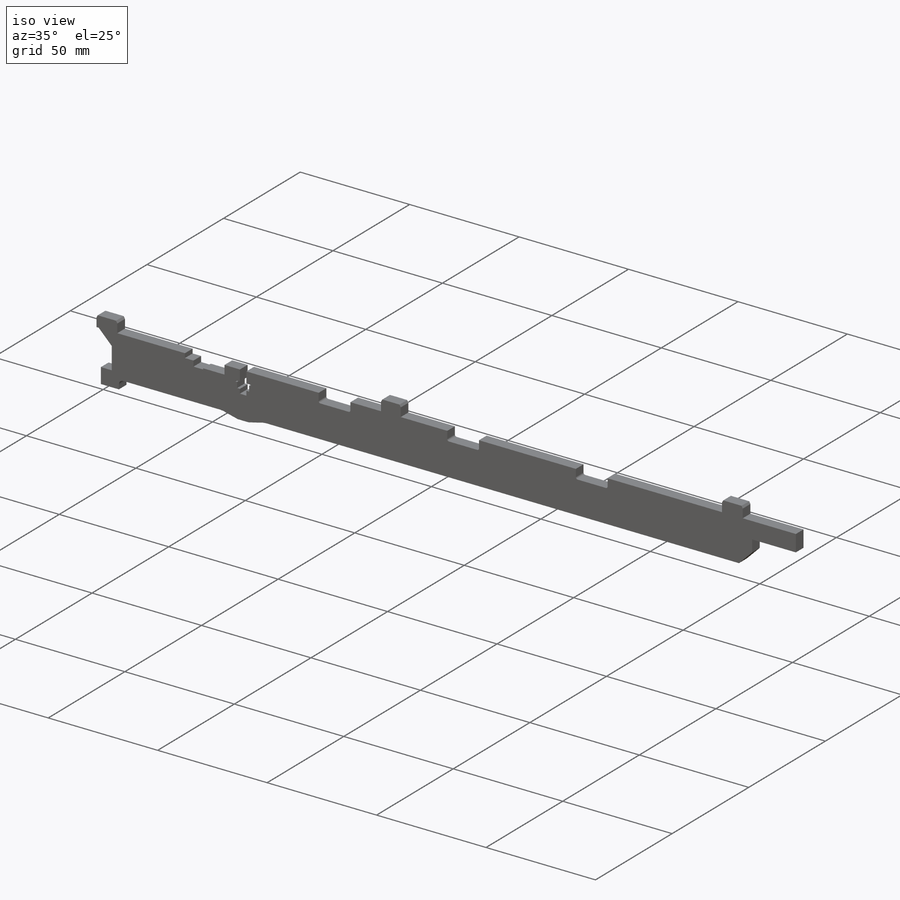
[diagram: iso view]
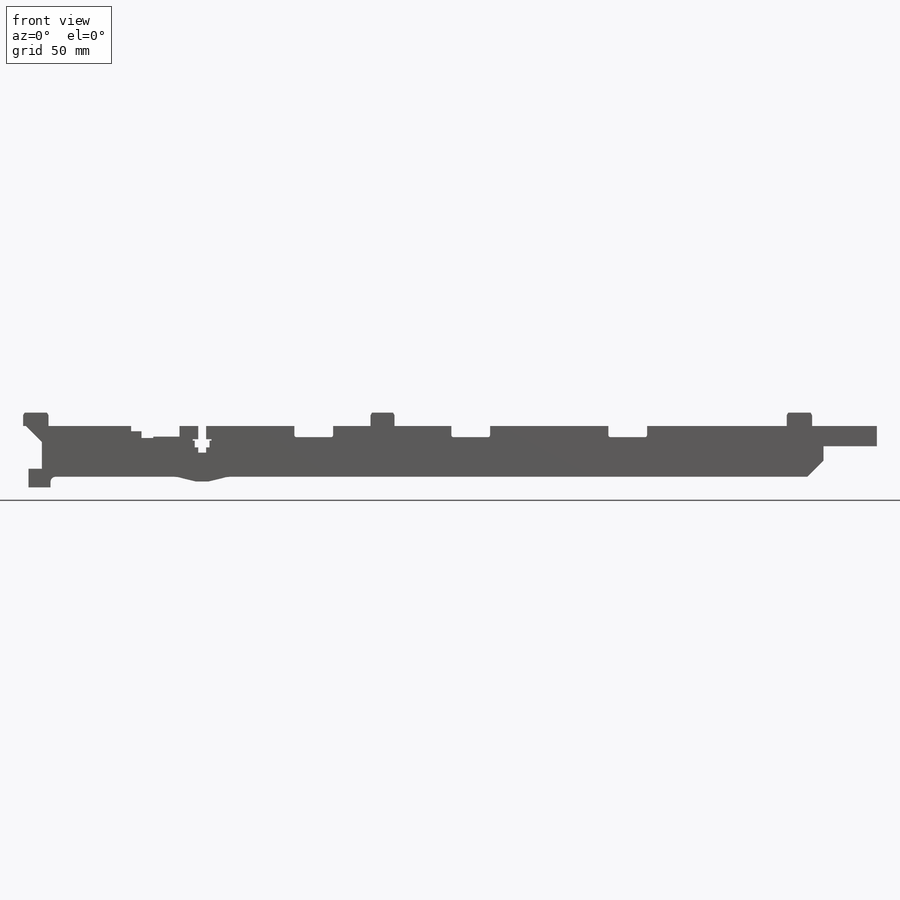
[diagram: front view]
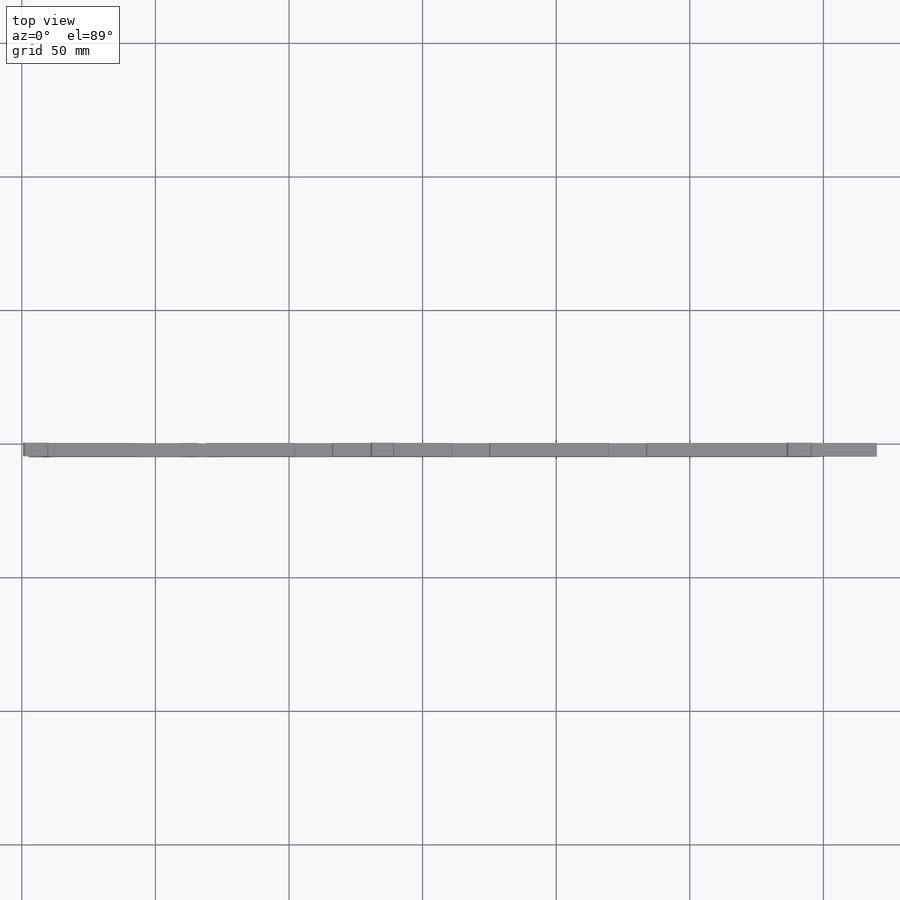
[diagram: top view]
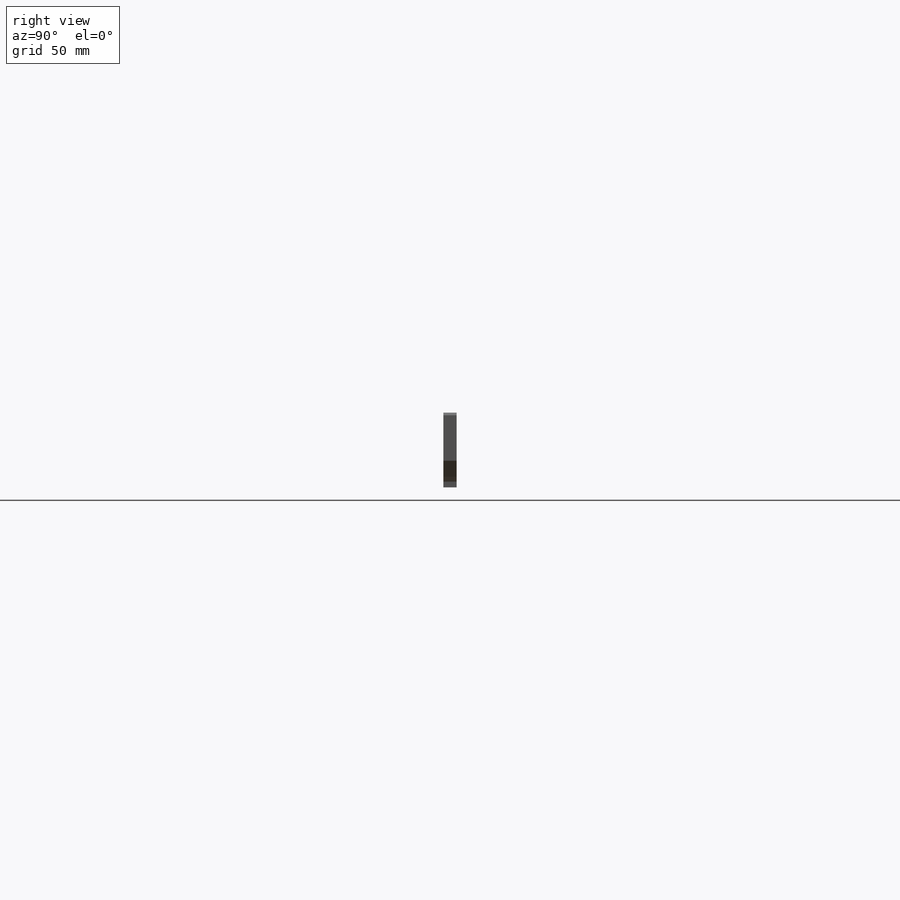
[diagram: right view]
SOLIDWORKS PART (.sldprt)
format: sldprt  version: not decoded by parser v0  size: 407,552 bytes
history: native  units: mm
features: chamfer x4, sketch x3, cut_extrude x2, material x1, extrude x1, fillet x1 (+13 scaffold rows collapsed)
feature tree (25):
  scaffold x13  (default folders/planes/origin — collapsed)
  material  "6061-T6 Black anodised"
  sketch  "Sketch1"  dims[c1.D21=0.2mm c1.D24=0.5mm c1.D26=1.5mm c1.D34=8.0mm c1.D35=2.0mm c1.D39=10.0mm c1.D40=12.0mm c1.D1=298.0mm c1.D2=20.0mm c1.D3=7.6mm c1.D4=5.0mm c1.D5=11.4mm c1.D6=8.0mm c1.D7=9.5mm c1.D8=6.0mm c1.D9=7.0mm c2.D6=180.0mm c2.D10=53.12mm c2.D11=27.37mm c2.D12=3.3mm c3.D10=56.12mm c3.D13=20.0mm c3.D14=~0.701924mm c4.D14=135.0deg c4.D15=50.0mm c4.D16=0.3mm c4.D17=36.0mm c4.D18=20.0mm c4.D19=42.5mm c4.D20=25.0mm c4.D22=3.0mm c4.D23=1.5mm c4.D25=0.5mm c4.D27=20.0mm c4.D28=4.0mm c4.D29=0.75mm c4.D30=0.5mm c4.D31=0.5mm c4.D32=4.0mm c4.D33=9.95mm c4.D34=0.5mm c4.D35=3.0mm c4.D36=0.5mm c4.D37=2.5mm c4.D38=1.0mm c4.D39=7.0mm c4.D40=5.5mm c4.D41=5.0mm c4.D42=12.0mm c4.D10=3.0mm c4.D11=0.5mm c5.D10=2.95mm c5.D11=7.0mm c5.D12=5.5mm c5.D13=5.0mm c5.D14=10.0mm c5.D15=4.0mm c5.D16=2.95mm c5.D17=7.0mm c5.D35=5.5mm c5.D39=0.5mm c5.D40=2.5mm c5.D41=1.0mm c5.D43=8.0mm c5.D44=1.0mm c5.D45=1.0mm c5.D6=1.0mm c6.D10=6.0mm c6.D11=4.0mm c6.D12=0.2mm c6.D13=55.0mm c6.D21=0.5mm c6.D22=0.2mm c6.D23=0.2mm c6.D24=5.0mm c6.D25=1.5mm c7.D13=11.5mm c7.D11=4.0mm c7.D12=9.0mm c8.D13=189.5mm c8.D9=6.0mm c8.D16=1.0mm c8.D17=8.5mm c8.D24=0.5mm c8.D25=2.5mm c8.D26=2.0mm c8.D27=2.96mm c8.D28=11.0mm c8.D29=7.0mm c8.D30=5.5mm c8.D31=270.0mm c8.D32=11.5mm c8.D33=6.5mm c8.D35=2.0mm c8.D36=5.0mm c8.D34=~3.536671mm c8.D37=8.0mm c8.D38=16.0mm c8.D40=9.0mm c8.D41=13.75mm c8.D42=14.5mm c8.D43=58.75mm c8.D44=58.75mm c8.D46=52.0mm c8.D47=4.2mm]
  extrude  "Boss-Extrude1"  Depth=5mm
  chamfer  "Chamfer1"  Distance=6mm Angle=45deg
  chamfer  "Chamfer2"  Distance=2.6mm Angle=60deg
  sketch  "Sketch2"
  cut_extrude  "Cut-Extrude1"  Depth=0.5mm
  sketch  "Sketch3"
  cut_extrude  "Cut-Extrude2"  [1 undecoded]
  chamfer  "Chamfer3"  Distance=1mm Angle=30deg
  chamfer  "Chamfer4"  Distance=1mm Angle=30deg
  fillet  "Fillet1"  Radius=0.8mm
decode coverage: 8 of 11 modeling features carry decoded parameters
note: ~ marks probable driven/reference dimensions
note: 1 parameter value undecoded
note: suppression state not decoded; provenance and decode notes live in map.json
